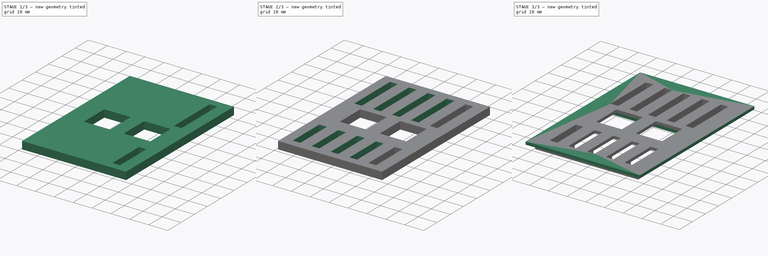
[diagram: build sequence overview — one tinted view per stage of 3, left to right]
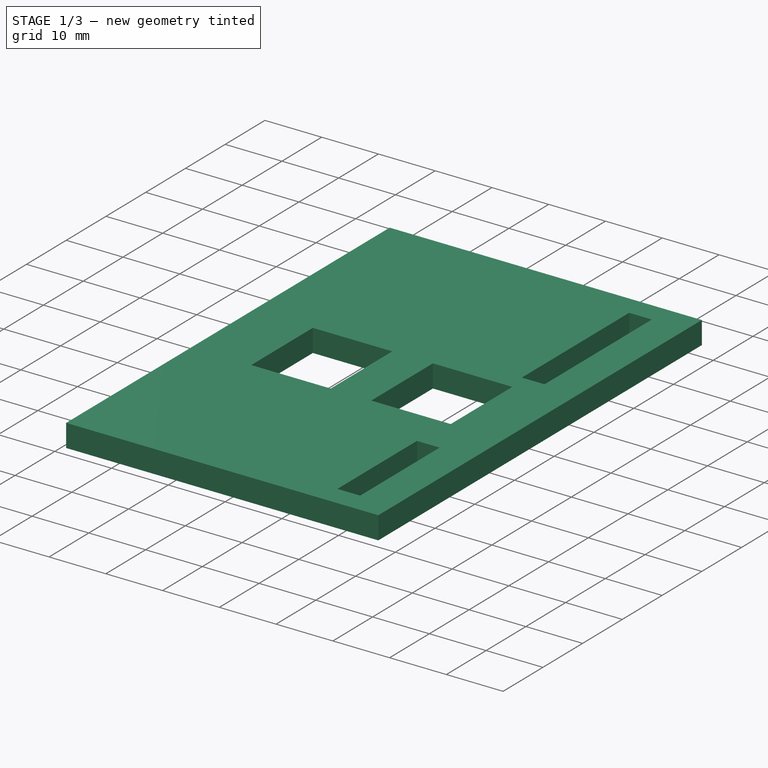
[diagram: stage 1 of 3 — iso view after this stage's code; geometry added in this stage tinted green]
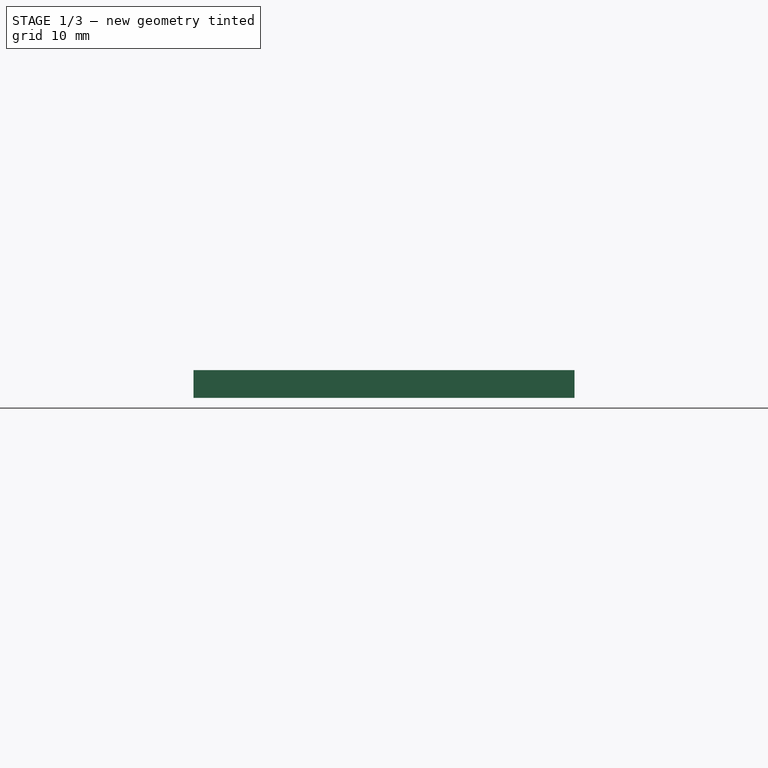
[diagram: stage 1 of 3 — front view after this stage's code; geometry added in this stage tinted green]
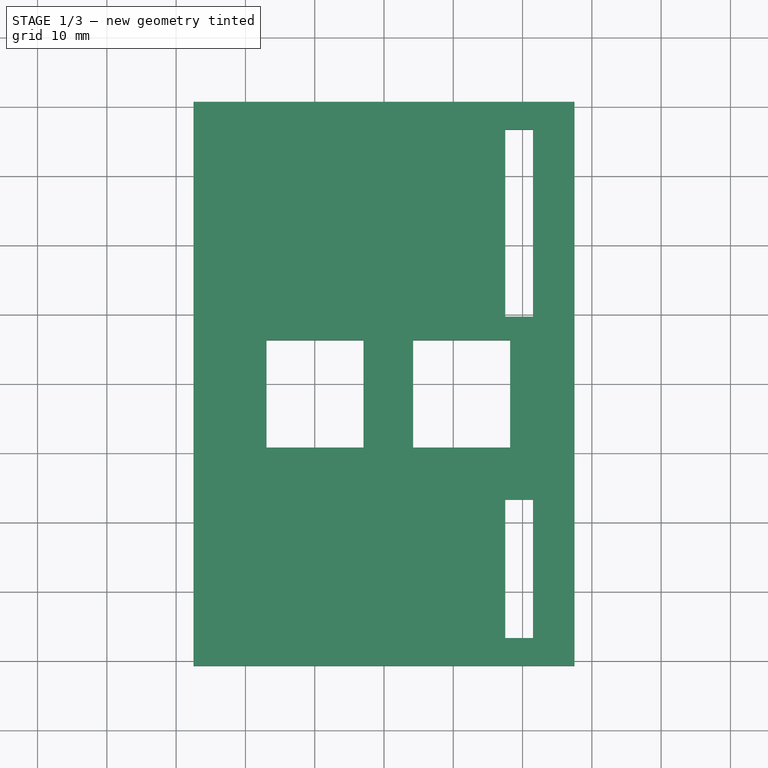
[diagram: stage 1 of 3 — top view after this stage's code; geometry added in this stage tinted green]
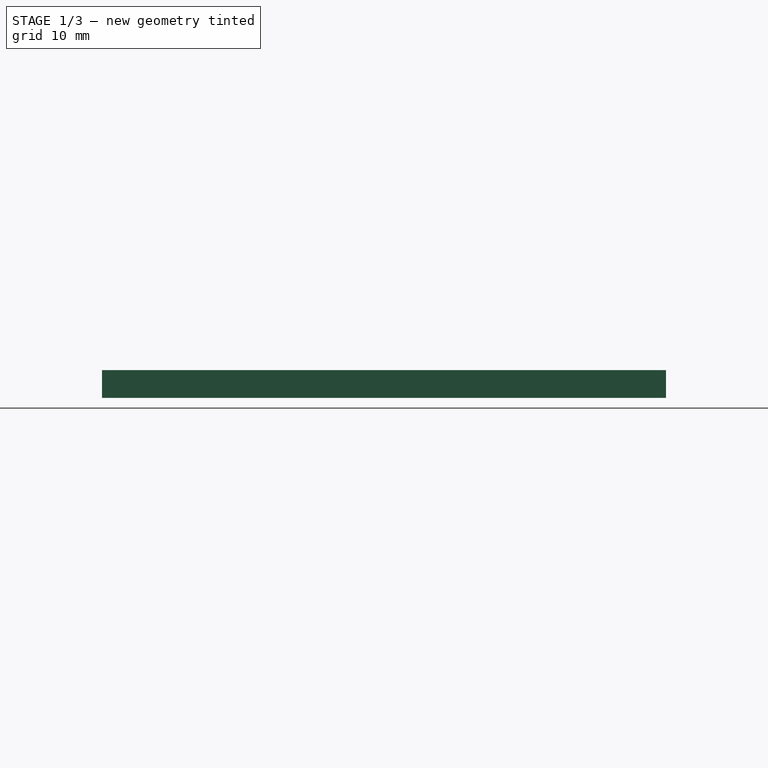
[diagram: stage 1 of 3 — right view after this stage's code; geometry added in this stage tinted green]
FCSTD DOCUMENT  (FreeCAD 0.16R4928 (Git))
Label: vent_v2
License: CreativeCommons Attribution-ShareAlike
LicenseURL: http://creativecommons.org/licenses/by-sa/4.0/
objects: Sketcher::SketchObject×4, PartDesign::Pad×2, PartDesign::Pocket×2, PartDesign::LinearPattern×1
note: 13 computed .brp shape members not serialized (recipe doc carries the construction recipe); baked Part::Feature solids carry a one-line shape summary decoded from their .brp

FEATURE [Sketcher::SketchObject] Sketch
  sketch-geometry (48):
    g0: LineSegment StartX=-27.5 StartY=40.7 StartZ=0 EndX=27.5 EndY=40.7 EndZ=0
    g1: LineSegment StartX=27.5 StartY=40.7 StartZ=0 EndX=27.5 EndY=-40.7 EndZ=0
    g2: LineSegment StartX=27.5 StartY=-40.7 StartZ=0 EndX=-27.5 EndY=-40.7 EndZ=0
    g3: LineSegment StartX=-27.5 StartY=-40.7 StartZ=0 EndX=-27.5 EndY=40.7 EndZ=0
    g4: LineSegment [constr] StartX=-23.9 StartY=37.2 StartZ=0 EndX=-19.9 EndY=37.2 EndZ=0
    g5: LineSegment [constr] StartX=-19.9 StartY=37.2 StartZ=0 EndX=-19.9 EndY=10.2 EndZ=0
    g6: LineSegment [constr] StartX=-19.9 StartY=10.2 StartZ=0 EndX=-23.9 EndY=10.2 EndZ=0
    g7: LineSegment [constr] StartX=-23.9 StartY=10.2 StartZ=0 EndX=-23.9 EndY=37.2 EndZ=0
    g8: LineSegment [constr] StartX=-16.6 StartY=37.2 StartZ=0 EndX=-12.6 EndY=37.2 EndZ=0
    g9: LineSegment [constr] StartX=-12.6 StartY=37.2 StartZ=0 EndX=-12.6 EndY=10.2 EndZ=0
    g10: LineSegment [constr] StartX=-12.6 StartY=10.2 StartZ=0 EndX=-16.6 EndY=10.2 EndZ=0
    g11: LineSegment [constr] StartX=-16.6 StartY=10.2 StartZ=0 EndX=-16.6 EndY=37.2 EndZ=0
    g12: LineSegment [constr] StartX=-9.3 StartY=37.2 StartZ=0 EndX=-5.3 EndY=37.2 EndZ=0
    g13: LineSegment [constr] StartX=-5.3 StartY=37.2 StartZ=0 EndX=-5.3 EndY=10.2 EndZ=0
    g14: LineSegment [constr] StartX=-5.3 StartY=10.2 StartZ=0 EndX=-9.3 EndY=10.2 EndZ=0
    g15: LineSegment [constr] StartX=-9.3 StartY=10.2 StartZ=0 EndX=-9.3 EndY=37.2 EndZ=0
    g16: LineSegment [constr] StartX=-2 StartY=37.2 StartZ=0 EndX=2 EndY=37.2 EndZ=0
    g17: LineSegment [constr] StartX=2 StartY=37.2 StartZ=0 EndX=2 EndY=10.2 EndZ=0
    g18: LineSegment [constr] StartX=2 StartY=10.2 StartZ=0 EndX=-2 EndY=10.2 EndZ=0
    g19: LineSegment [constr] StartX=-2 StartY=10.2 StartZ=0 EndX=-2 EndY=37.2 EndZ=0
    g20: LineSegment [constr] StartX=5.3 StartY=37.2 StartZ=0 EndX=9.3 EndY=37.2 EndZ=0
    g21: LineSegment [constr] StartX=9.3 StartY=37.2 StartZ=0 EndX=9.3 EndY=10.2 EndZ=0
    g22: LineSegment [constr] StartX=9.3 StartY=10.2 StartZ=0 EndX=5.3 EndY=10.2 EndZ=0
    g23: LineSegment [constr] StartX=5.3 StartY=10.2 StartZ=0 EndX=5.3 EndY=37.2 EndZ=0
    g24: LineSegment [constr] StartX=12.6 StartY=37.2 StartZ=0 EndX=16.6 EndY=37.2 EndZ=0
    g25: LineSegment [constr] StartX=16.6 StartY=37.2 StartZ=0 EndX=16.6 EndY=10.2 EndZ=0
    g26: LineSegment [constr] StartX=16.6 StartY=10.2 StartZ=0 EndX=12.6 EndY=10.2 EndZ=0
    g27: LineSegment [constr] StartX=12.6 StartY=10.2 StartZ=0 EndX=12.6 EndY=37.2 EndZ=0
    g28: LineSegment [constr] StartX=19.9 StartY=37.2 StartZ=0 EndX=23.9 EndY=37.2 EndZ=0
    g29: LineSegment [constr] StartX=23.9 StartY=37.2 StartZ=0 EndX=23.9 EndY=10.2 EndZ=0
    g30: LineSegment [constr] StartX=23.9 StartY=10.2 StartZ=0 EndX=19.9 EndY=10.2 EndZ=0
    g31: LineSegment [constr] StartX=19.9 StartY=10.2 StartZ=0 EndX=19.9 EndY=37.2 EndZ=0
    g32: LineSegment [constr] StartX=-19.9 StartY=37.2 StartZ=0 EndX=-16.6 EndY=37.2 EndZ=0
    g33: LineSegment [constr] StartX=-12.6 StartY=37.2 StartZ=0 EndX=-9.3 EndY=37.2 EndZ=0
    g34: LineSegment [constr] StartX=-5.3 StartY=37.2 StartZ=0 EndX=-2 EndY=37.2 EndZ=0
    g35: LineSegment [constr] StartX=2 StartY=37.2 StartZ=0 EndX=5.3 EndY=37.2 EndZ=0
    g36: LineSegment [constr] StartX=9.3 StartY=37.2 StartZ=0 EndX=12.6 EndY=37.2 EndZ=0
    g37: LineSegment [constr] StartX=16.6 StartY=37.2 StartZ=0 EndX=19.9 EndY=37.2 EndZ=0
    g38: LineSegment [constr] StartX=16.6 StartY=10.2 StartZ=0 EndX=19.9 EndY=10.2 EndZ=0
    g39: LineSegment StartX=-16.95 StartY=6.3 StartZ=0 EndX=-2.95 EndY=6.3 EndZ=0
    g40: LineSegment StartX=-2.95 StartY=6.3 StartZ=0 EndX=-2.95 EndY=-9.2 EndZ=0
    g41: LineSegment StartX=-2.95 StartY=-9.2 StartZ=0 EndX=-16.95 EndY=-9.2 EndZ=0
    g42: LineSegment StartX=-16.95 StartY=-9.2 StartZ=0 EndX=-16.95 EndY=6.3 EndZ=0
    g43: LineSegment StartX=4.2 StartY=6.3 StartZ=0 EndX=18.2 EndY=6.3 EndZ=0
    g44: LineSegment StartX=18.2 StartY=6.3 StartZ=0 EndX=18.2 EndY=-9.2 EndZ=0
    g45: LineSegment StartX=18.2 StartY=-9.2 StartZ=0 EndX=4.2 EndY=-9.2 EndZ=0
    g46: LineSegment StartX=4.2 StartY=-9.2 StartZ=0 EndX=4.2 EndY=6.3 EndZ=0
    g47: LineSegment [constr] StartX=-2.95 StartY=-9.2 StartZ=0 EndX=4.2 EndY=-9.2 EndZ=0
  constraints (136):
    c: Coincident(g0,g1)
    c: Coincident(g1,g2)
    c: Coincident(g2,g3)
    c: Coincident(g3,g0)
    c: Horizontal(g0)
    c: Horizontal(g2)
    c: Vertical(g1)
    c: Vertical(g3)
    c: DistanceX(g0) = 55
    c: DistanceY(g1) = -81.4
    c: Symmetric(g0,g1,g-1)
    c: Coincident(g4,g5)
    c: Coincident(g5,g6)
    c: Coincident(g6,g7)
    c: Coincident(g7,g4)
    c: Horizontal(g4)
    c: Horizontal(g6)
    c: Vertical(g5)
    c: Vertical(g7)
    c: Coincident(g8,g9)
    c: Coincident(g9,g10)
    c: Coincident(g10,g11)
    c: Coincident(g11,g8)
    c: Horizontal(g8)
    c: Horizontal(g10)
    c: Vertical(g9)
    c: Vertical(g11)
    c: Coincident(g12,g13)
    c: Coincident(g13,g14)
    c: Coincident(g14,g15)
    c: Coincident(g15,g12)
    c: Horizontal(g12)
    c: Horizontal(g14)
    c: Vertical(g13)
    c: Vertical(g15)
    c: Coincident(g16,g17)
    c: Coincident(g17,g18)
    c: Coincident(g18,g19)
    c: Coincident(g19,g16)
    c: Horizontal(g16)
    c: Horizontal(g18)
    c: Vertical(g17)
    c: Vertical(g19)
    c: Coincident(g20,g21)
    c: Coincident(g21,g22)
    c: Coincident(g22,g23)
    c: Coincident(g23,g20)
    c: Horizontal(g20)
    c: Horizontal(g22)
    c: Vertical(g21)
    c: Vertical(g23)
    c: Coincident(g24,g25)
    c: Coincident(g25,g26)
    c: Coincident(g26,g27)
    c: Coincident(g27,g24)
    c: Horizontal(g24)
    c: Horizontal(g26)
    c: Vertical(g25)
    c: Vertical(g27)
    c: Coincident(g28,g29)
    c: Coincident(g29,g30)
    c: Coincident(g30,g31)
    c: Coincident(g31,g28)
    c: Horizontal(g28)
    c: Horizontal(g30)
    c: Vertical(g29)
    c: Vertical(g31)
    c: Equal(g7,g11)
    c: Equal(g11,g15)
    c: Equal(g15,g19)
    c: Equal(g19,g23)
    c: Equal(g23,g27)
    c: Equal(g8,g4)
    c: Equal(g4,g12)
    c: Equal(g12,g16)
    c: Equal(g16,g20)
    c: Equal(g20,g24)
    c: Equal(g24,g28)
    c: Coincident(g32,g4)
    c: Coincident(g32,g8)
    c: Horizontal(g33)
    c: Coincident(g34,g12)
    c: Horizontal(g34)
    c: Horizontal(g35)
    c: Horizontal(g36)
    c: Horizontal(g37)
    c: Coincident(g37,g24)
    c: Coincident(g37,g28)
    c: Horizontal(g32)
    c: Coincident(g8,g33)
    c: Coincident(g33,g12)
    c: Coincident(g34,g16)
    c: Coincident(g35,g16)
    c: Coincident(g20,g35)
    c: Coincident(g36,g20)
    c: Coincident(g24,g36)
    c: Equal(g32,g33)
    c: Equal(g33,g34)
    c: Equal(g34,g35)
    c: Equal(g35,g36)
    c: Equal(g36,g37)
    c: Coincident(g38,g25)
    c: Horizontal(g38)
    c: Coincident(g39,g40)
    c: Coincident(g40,g41)
    c: Coincident(g41,g42)
    c: Coincident(g42,g39)
    c: Horizontal(g39)
    c: Horizontal(g41)
    c: Vertical(g40)
    c: Vertical(g42)
    c: Coincident(g43,g44)
    c: Coincident(g44,g45)
    c: Coincident(g45,g46)
    c: Coincident(g46,g43)
    c: Horizontal(g43)
    c: Horizontal(g45)
    c: Vertical(g44)
    c: Vertical(g46)
    c: Coincident(g47,g40)
    c: Horizontal(g47)
    c: Coincident(g47,g45)
    c: Equal(g42,g44)
    c: Equal(g39,g43)
    c: DistanceX(g44,g1) = 9.3
    c: DistanceX(g43) = 14
    c: DistanceY(g44) = -15.5
    c: DistanceY(g41,g2) = -31.5
    c: DistanceX(g47) = 7.15
    c: DistanceY(g7) = 27
    c: DistanceY(g4,g0) = 3.5
    c: Symmetric(g4,g28,g-2)
    c: DistanceX(g8) = 4
    c: DistanceX(g32) = 3.3
    c: Equal(g38,g37)
    c: Coincident(g30,g38)
FEATURE [PartDesign::Pad] Pad
  Length = 4
  Length2 = 100
  Sketch = -> Sketch
  Type = 0
FEATURE [Sketcher::SketchObject] Sketch001
  ExternalGeometry = -> [Pad]
  Placement = pos=(0,0,4) rot=(0,0,1;0rad)
  Support = -> Pad [Face14]
  sketch-geometry (8):
    g0: LineSegment StartX=17.5 StartY=36.7 StartZ=0 EndX=21.5 EndY=36.7 EndZ=0
    g1: LineSegment StartX=21.5 StartY=36.7 StartZ=0 EndX=21.5 EndY=9.7 EndZ=0
    g2: LineSegment StartX=21.5 StartY=9.7 StartZ=0 EndX=17.5 EndY=9.7 EndZ=0
    g3: LineSegment StartX=17.5 StartY=9.7 StartZ=0 EndX=17.5 EndY=36.7 EndZ=0
    g4: LineSegment StartX=17.5 StartY=-16.7 StartZ=0 EndX=21.5 EndY=-16.7 EndZ=0
    g5: LineSegment StartX=21.5 StartY=-16.7 StartZ=0 EndX=21.5 EndY=-36.7 EndZ=0
    g6: LineSegment StartX=21.5 StartY=-36.7 StartZ=0 EndX=17.5 EndY=-36.7 EndZ=0
    g7: LineSegment StartX=17.5 StartY=-36.7 StartZ=0 EndX=17.5 EndY=-16.7 EndZ=0
  constraints (24):
    c: Coincident(g0,g1)
    c: Coincident(g1,g2)
    c: Coincident(g2,g3)
    c: Coincident(g3,g0)
    c: Horizontal(g0)
    c: Horizontal(g2)
    c: Vertical(g1)
    c: Vertical(g3)
    c: DistanceX(g0) = 4
    c: DistanceY(g1) = -27
    c: Coincident(g4,g5)
    c: Coincident(g5,g6)
    c: Coincident(g6,g7)
    c: Coincident(g7,g4)
    c: Horizontal(g4)
    c: Horizontal(g6)
    c: Vertical(g5)
    c: Vertical(g7)
    c: Equal(g6,g0)
    c: DistanceY(g5) = -20
    c: DistanceX(g0,g-4) = 6
    c: DistanceX(g5,g-5) = 6
    c: DistanceY(g0,g-4) = 4
    c: DistanceY(g5,g-5) = -4
FEATURE [PartDesign::Pocket] Pocket
  Length = 5
  Sketch = -> Sketch001
  Type = 0
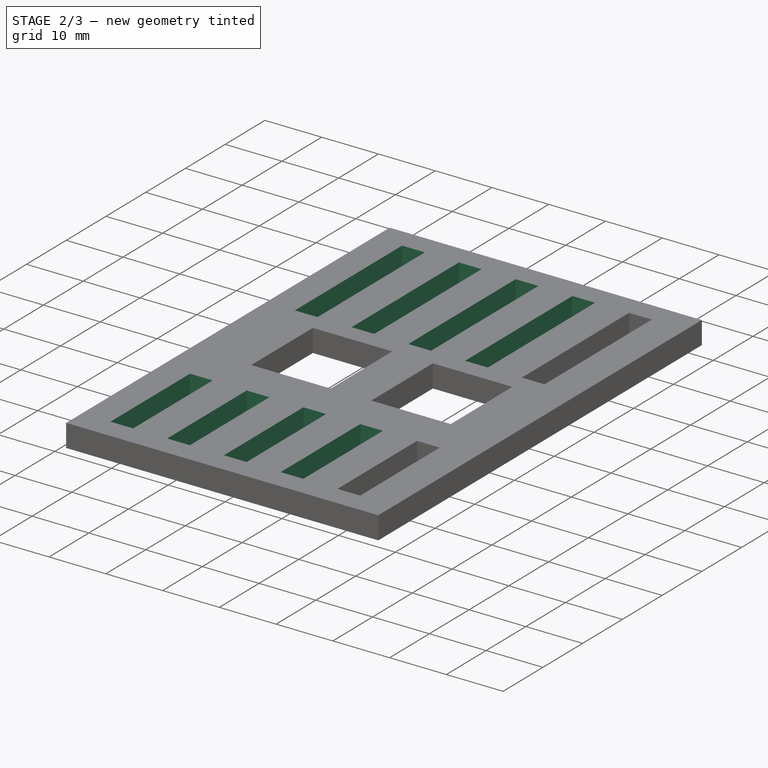
[diagram: stage 2 of 3 — iso view after this stage's code; geometry added in this stage tinted green]
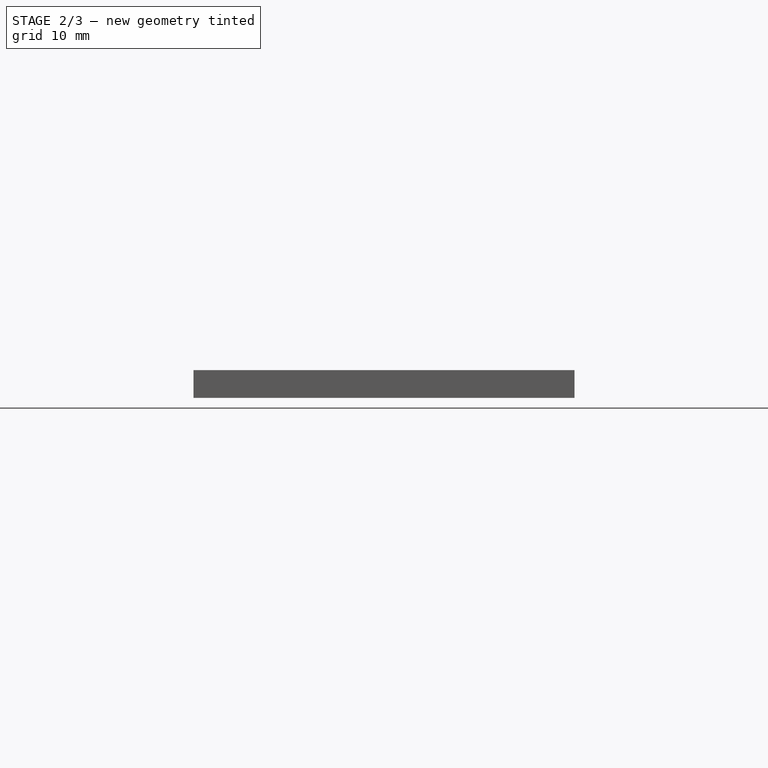
[diagram: stage 2 of 3 — front view after this stage's code; geometry added in this stage tinted green]
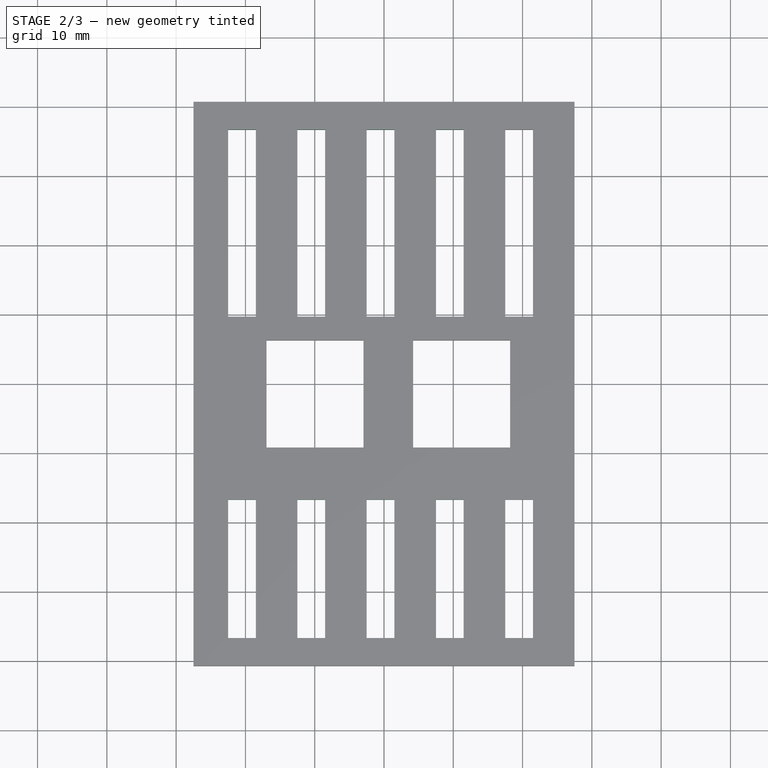
[diagram: stage 2 of 3 — top view after this stage's code; geometry added in this stage tinted green]
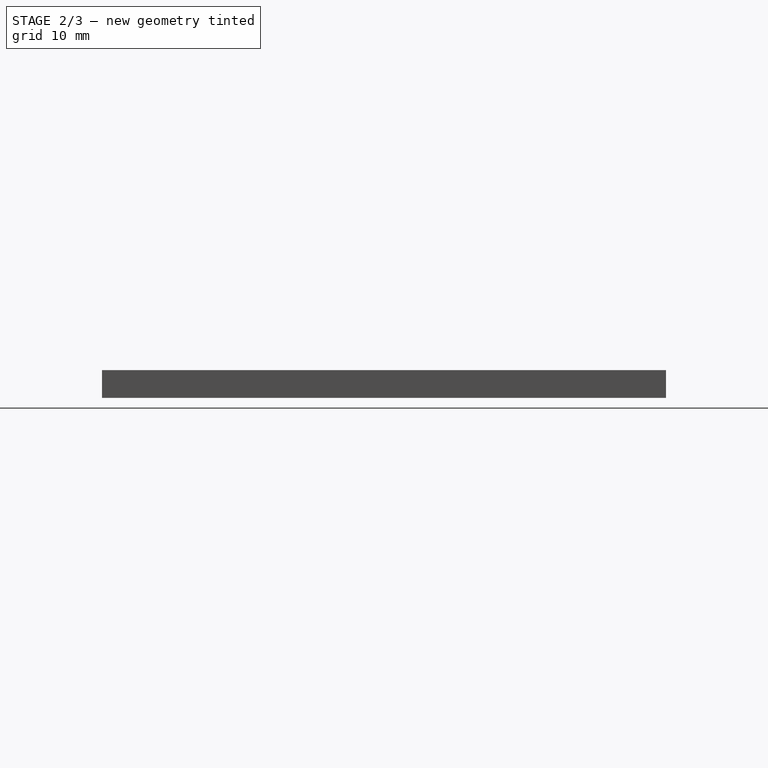
[diagram: stage 2 of 3 — right view after this stage's code; geometry added in this stage tinted green]
FEATURE [PartDesign::LinearPattern] LinearPattern
  Direction = -> Pocket [Face3]
  Length = 40
  Occurrences = 5
  Originals = -> [Pocket]
  Reversed = true
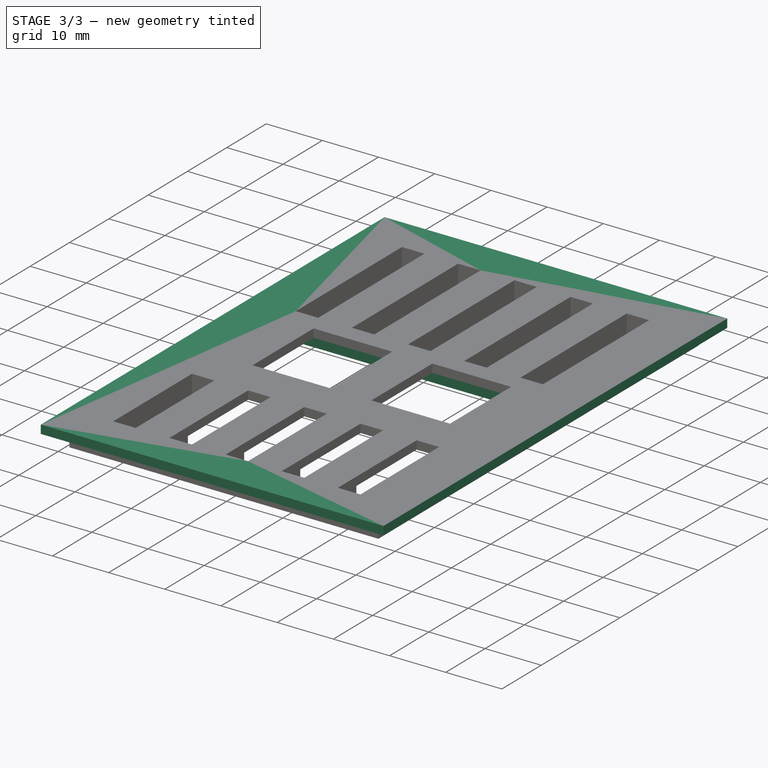
[diagram: stage 3 of 3 — iso view after this stage's code; geometry added in this stage tinted green]
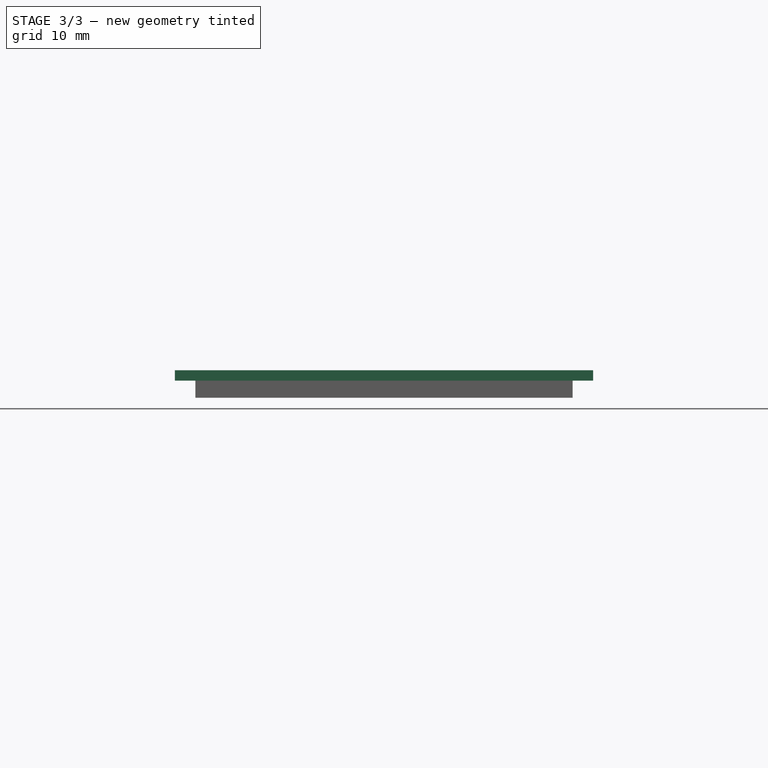
[diagram: stage 3 of 3 — front view after this stage's code; geometry added in this stage tinted green]
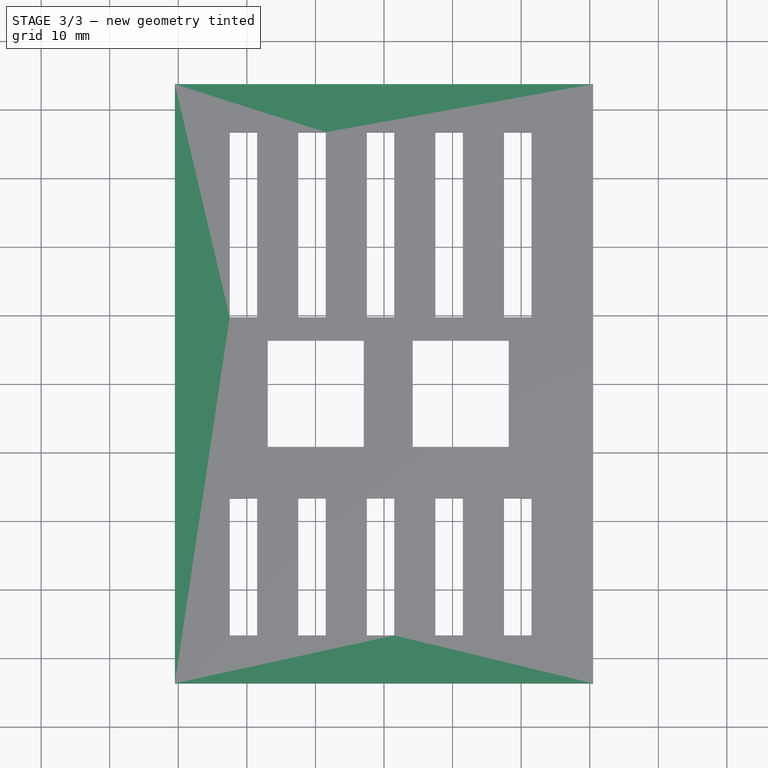
[diagram: stage 3 of 3 — top view after this stage's code; geometry added in this stage tinted green]
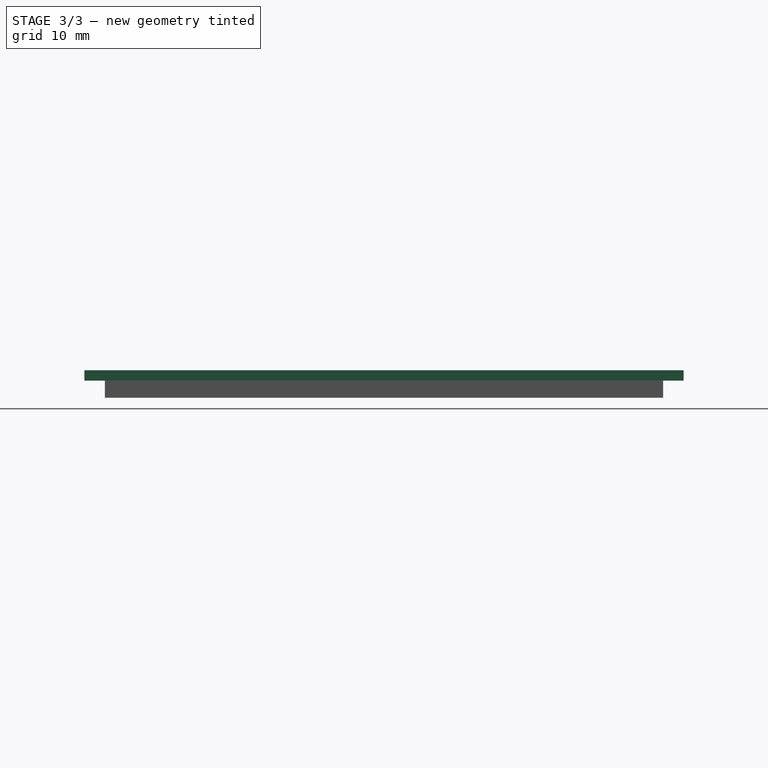
[diagram: stage 3 of 3 — right view after this stage's code; geometry added in this stage tinted green]
FEATURE [Sketcher::SketchObject] Sketch002
  ExternalGeometry = -> [LinearPattern]
  Placement = pos=(0,0,4) rot=(0,0,1;0rad)
  Support = -> LinearPattern [Face5]
  sketch-geometry (8):
    g0: LineSegment StartX=-27.5 StartY=40.7 StartZ=0 EndX=27.5 EndY=40.7 EndZ=0
    g1: LineSegment StartX=27.5 StartY=40.7 StartZ=0 EndX=27.5 EndY=-40.7 EndZ=0
    g2: LineSegment StartX=27.5 StartY=-40.7 StartZ=0 EndX=-27.5 EndY=-40.7 EndZ=0
    g3: LineSegment StartX=-27.5 StartY=-40.7 StartZ=0 EndX=-27.5 EndY=40.7 EndZ=0
    g4: LineSegment StartX=-30.5 StartY=43.7 StartZ=0 EndX=30.5 EndY=43.7 EndZ=0
    g5: LineSegment StartX=30.5 StartY=43.7 StartZ=0 EndX=30.5 EndY=-43.7 EndZ=0
    g6: LineSegment StartX=30.5 StartY=-43.7 StartZ=0 EndX=-30.5 EndY=-43.7 EndZ=0
    g7: LineSegment StartX=-30.5 StartY=-43.7 StartZ=0 EndX=-30.5 EndY=43.7 EndZ=0
  constraints (21):
    c: Coincident(g0,g1)
    c: Coincident(g1,g2)
    c: Coincident(g2,g3)
    c: Coincident(g3,g0)
    c: Horizontal(g0)
    c: Horizontal(g2)
    c: Vertical(g1)
    c: Vertical(g3)
    c: Coincident(g4,g5)
    c: Coincident(g5,g6)
    c: Coincident(g6,g7)
    c: Coincident(g7,g4)
    c: Horizontal(g4)
    c: Horizontal(g6)
    c: Vertical(g5)
    c: Vertical(g7)
    c: Symmetric(g0,g2,g-1)
    c: Coincident(g-3,g0)
    c: Symmetric(g4,g6,g-1)
    c: DistanceX(g4,g0) = -3
    c: DistanceY(g0,g4) = 3
FEATURE [PartDesign::Pad] Pad001
  Length = 1.5
  Length2 = 100
  Reversed = true
  Sketch = -> Sketch002
  Type = 0
FEATURE [Sketcher::SketchObject] Sketch003
  Placement = pos=(0,0,0) rot=(1,0,0;3.14159rad)
  Support = -> Pad001 [Face10]
  sketch-geometry (4):
    g0: LineSegment StartX=-20 StartY=32 StartZ=0 EndX=20 EndY=32 EndZ=0
    g1: LineSegment StartX=20 StartY=32 StartZ=0 EndX=20 EndY=-8 EndZ=0
    g2: LineSegment StartX=20 StartY=-8 StartZ=0 EndX=-20 EndY=-8 EndZ=0
    g3: LineSegment StartX=-20 StartY=-8 StartZ=0 EndX=-20 EndY=32 EndZ=0
  constraints (12):
    c: Coincident(g0,g1)
    c: Coincident(g1,g2)
    c: Coincident(g2,g3)
    c: Coincident(g3,g0)
    c: Horizontal(g0)
    c: Horizontal(g2)
    c: Vertical(g1)
    c: Vertical(g3)
    c: Symmetric(g0,g0,g-2)
    c: Equal(g0,g1)
    c: DistanceX(g0) = 40
    c: DistanceY(g2) = -8
FEATURE [PartDesign::Pocket] Pocket001
  Length = 2.5
  Sketch = -> Sketch003
  Type = 0
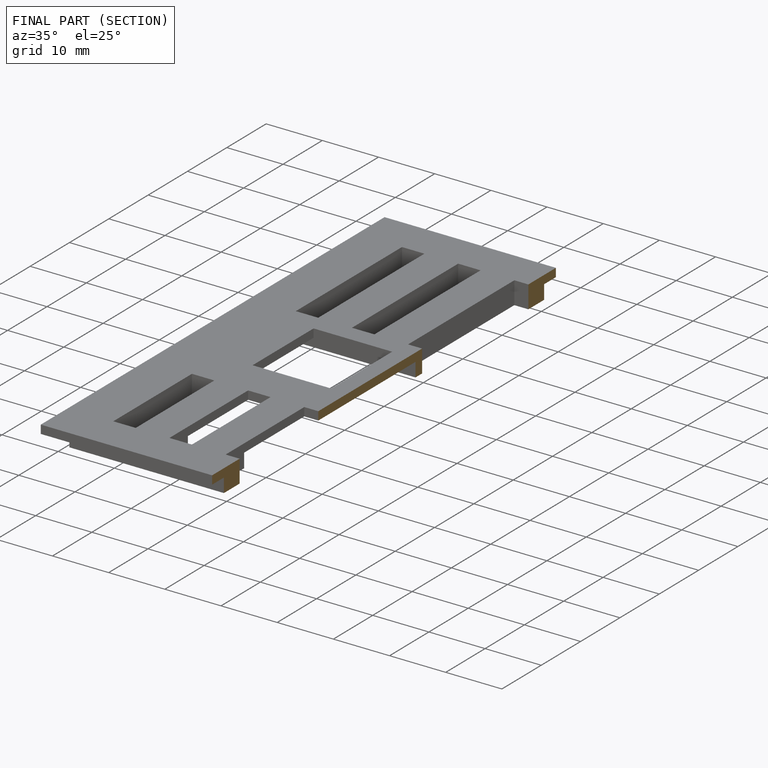
[diagram: finished part — half-section view (interior)]
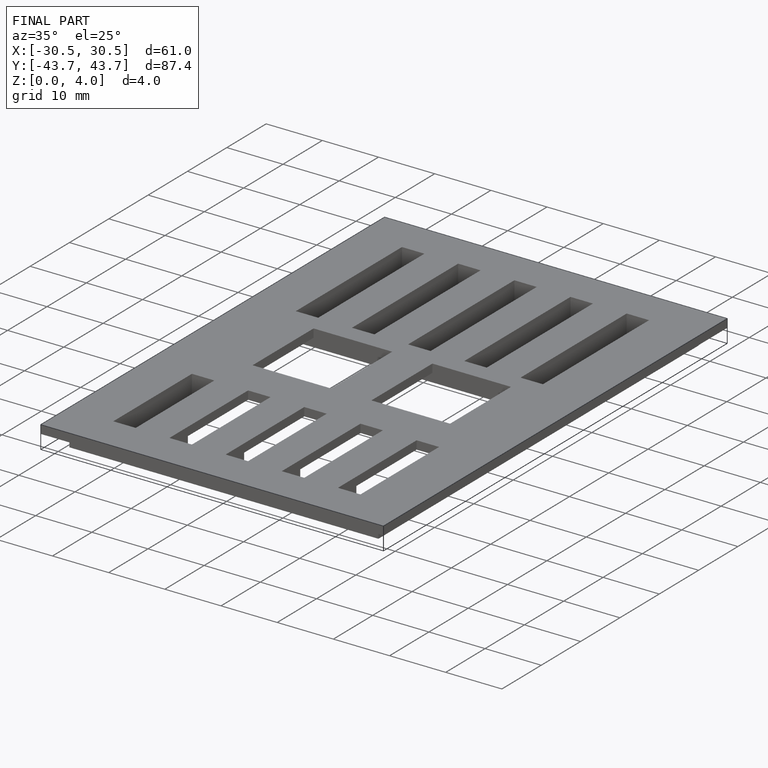
[diagram: finished part — iso view with bounding-box wireframe]
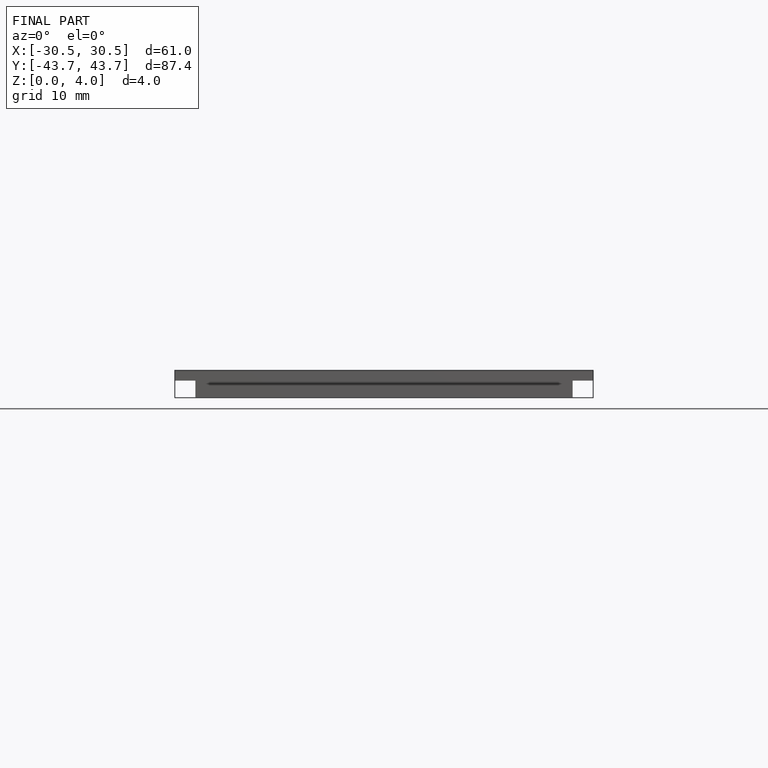
[diagram: finished part — front view with bounding-box wireframe]
